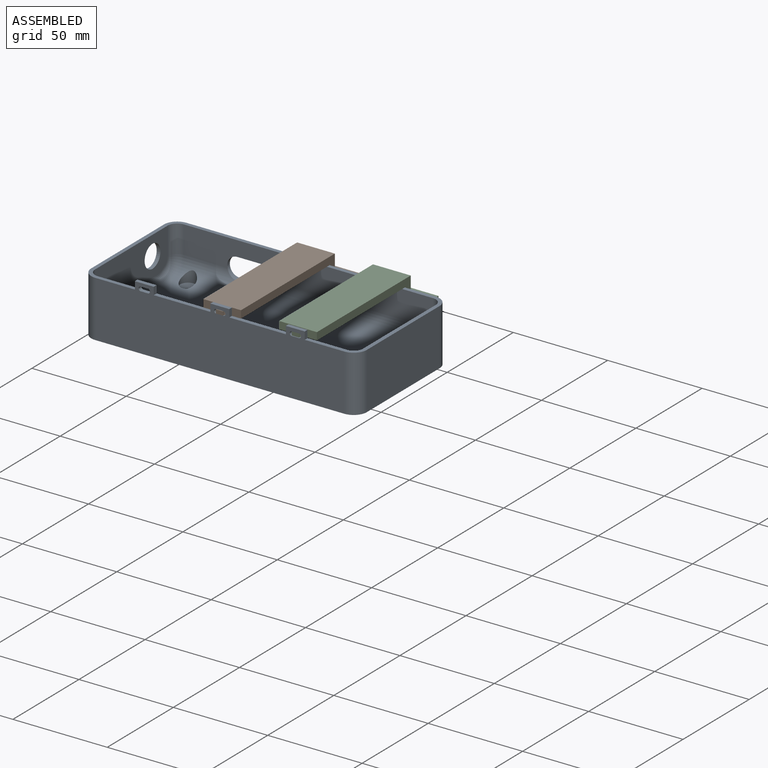
[diagram: assembled view]
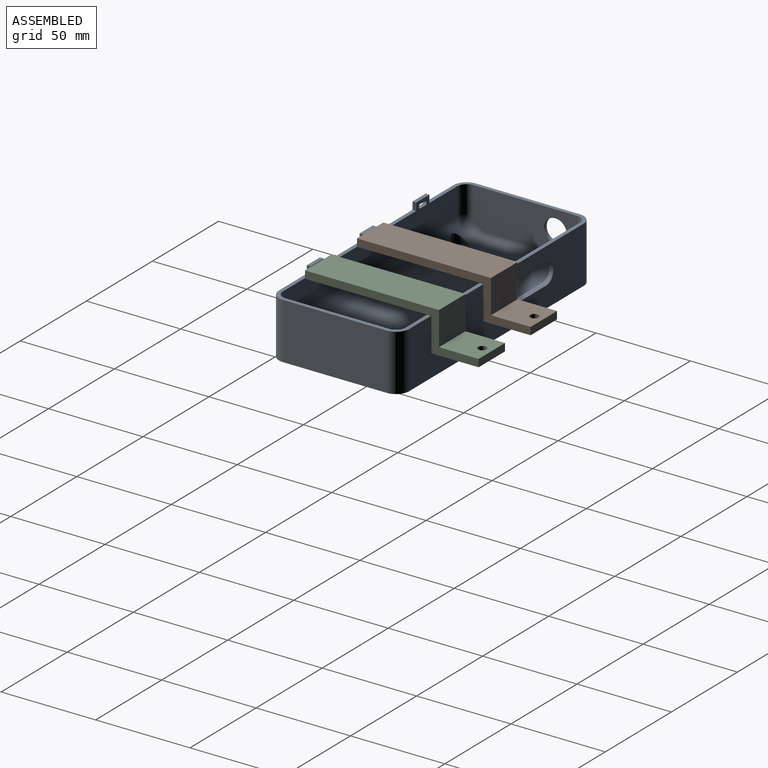
[diagram: assembled view, second angle]
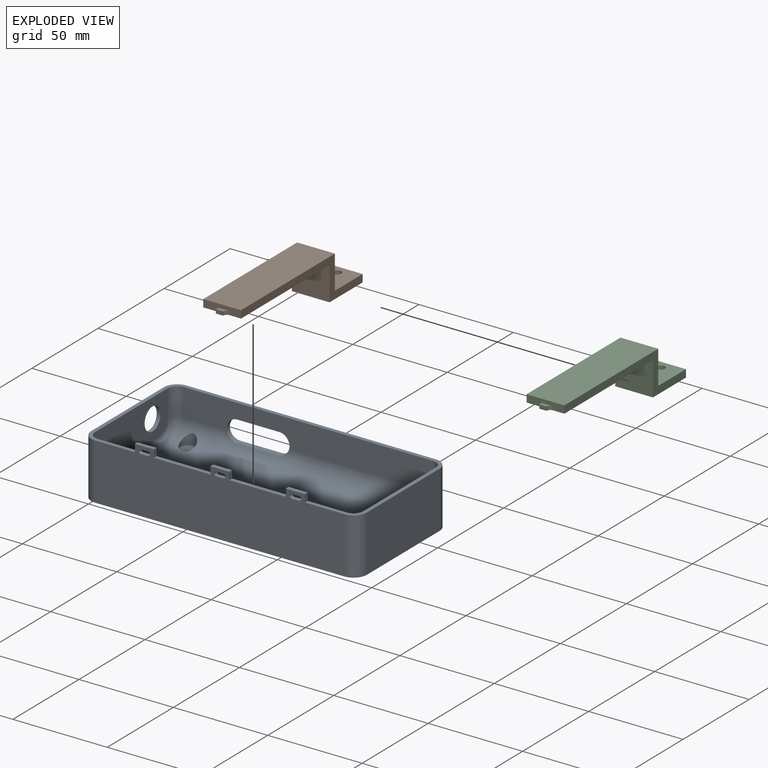
[diagram: exploded view]
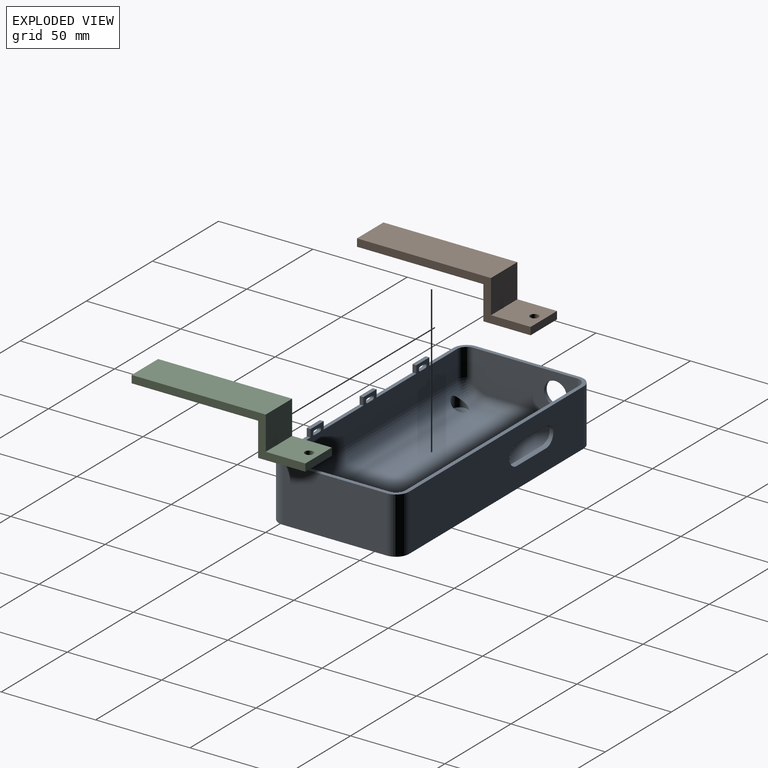
[diagram: exploded view, second angle]
ASSEMBLY  parts=3 mates=2
PART A: 83 faces, bbox 146.1x69.1x33.9 mm
  f0: plane 146x69mm, normal (0,0,1), area 643.4mm2, adj f18,f19,f20,f21,f22,f23,f24,f25
  f1: plane 30x2mm, normal (0,0,1), area 60mm2, adj f18,f22,f66,f68
  f2: plane 30x2mm, normal (0,0,1), area 60mm2, adj f18,f22,f63,f65
  f3: plane 113.65x2.43mm, normal (0,0.45,0.89), area 297mm2, adj f8,f9,f52,f53
  f4: plane 2.86x2.43mm, normal (0,0.45,0.89), area 6mm2, adj f8,f9,f29,f53
  f5: plane 113.65x2.43mm, normal (0,-0.45,0.89), area 297mm2, adj f7,f10,f50,f51
  f6: plane 2.86x2.43mm, normal (0,-0.45,0.89), area 6mm2, adj f7,f10,f42,f51
  f7: cylinder r=10mm len=132mm, axis (1,0,0), area 1265.7mm2, adj f5,f6,f17,f20,f34,f43,f50,f51
  f8: cylinder r=10mm len=132mm, axis (-1,0,0), area 1394.9mm2, adj f3,f4,f16,f18,f28,f37,f52,f53
  f9: cylinder r=10mm len=132mm, axis (-1,0,0), area 596.3mm2, adj f3,f4,f16,f26,f30,f39,f52,f53
  f10: cylinder r=10mm len=132mm, axis (-1,0,0), area 596.3mm2, adj f5,f6,f17,f26,f32,f41,f50,f51
  f11: cylinder r=2.25mm len=4.5mm, axis (0,0,1), area 28.3mm2, adj f15,f55
  f12: cylinder r=2.25mm len=4.5mm, axis (0,0,1), area 28.3mm2, adj f15,f57
  f13: cylinder r=2.25mm len=4.5mm, axis (0,0,1), area 28.3mm2, adj f15,f56
  f14: cylinder r=2.25mm len=4.5mm, axis (0,0,1), area 28.3mm2, adj f15,f54
  f15: plane 146x69mm, normal (0,0,-1), area 9968.3mm2, adj f11,f12,f13,f14,f21,f22,f23,f24
  f16: plane 2.86x2.43mm, normal (0,0.45,0.89), area 6mm2, adj f8,f9,f38,f52
  f17: plane 2.86x2.43mm, normal (0,-0.45,0.89), area 6mm2, adj f7,f10,f33,f50
  f18: plane 132x18.62mm, normal (0,1,0), area 2013.3mm2, adj f0,f1,f2,f8,f27,f36,f62,f63
  f19: plane 55x20.8mm, normal (1,0,0), area 1008.4mm2, adj f0,f27,f28,f29,f30,f31,f32,f33
  f20: plane 132x14.62mm, normal (0,-1,0), area 1724mm2, adj f0,f7,f35,f44,f58,f60,f61
  f21: plane 55x29.8mm, normal (-1,0,0), area 1525.9mm2, adj f0,f15,f45,f48,f49
  f22: plane 132x33.8mm, normal (0,-1,0), area 4017.1mm2, adj f0,f1,f2,f15,f45,f46,f62,f63
  f23: plane 55x29.8mm, normal (1,0,0), area 1639mm2, adj f0,f15,f46,f47
  f24: plane 132x29.8mm, normal (0,1,0), area 3602.2mm2, adj f0,f15,f47,f48,f58,f59,f60,f61
  f25: plane 55x20.8mm, normal (-1,0,0), area 1121.5mm2, adj f0,f36,f37,f38,f39,f40,f41,f42
  f26: plane 132x40.28mm, normal (0,0,1), area 5316.8mm2, adj f9,f10,f31,f40
  f27: cylinder r=5mm len=14.62mm, axis (0,0,-1), area 114.8mm2, adj f0,f18,f19,f28
  f28: torus R=5mm, axis (-1,0,0), area 71.2mm2, adj f8,f19,f27,f29
  f29: cylinder r=5mm len=5.65mm, axis (0,-0.89,0.45), area 20.7mm2, adj f4,f19,f28,f30
  f30: torus R=5mm, axis (-1,0,0), area 29.8mm2, adj f9,f19,f29,f31
  f31: cylinder r=5mm len=40.28mm, axis (0,-1,0), area 316.3mm2, adj f19,f26,f30,f32
  f32: torus R=5mm, axis (-1,0,0), area 29.8mm2, adj f10,f19,f31,f33
  f33: cylinder r=5mm len=5.65mm, axis (0,0.89,0.45), area 20.7mm2, adj f17,f19,f32,f34
  f34: torus R=5mm, axis (-1,0,0), area 71.2mm2, adj f7,f19,f33,f35
  f35: cylinder r=5mm len=14.62mm, axis (0,0,1), area 114.8mm2, adj f0,f19,f20,f34
  f36: cylinder r=5mm len=14.62mm, axis (0,0,1), area 114.8mm2, adj f0,f18,f25,f37
  f37: torus R=5mm, axis (-1,0,0), area 71.2mm2, adj f8,f25,f36,f38
  f38: cylinder r=5mm len=5.65mm, axis (0,-0.89,0.45), area 20.7mm2, adj f16,f25,f37,f39
  f39: torus R=5mm, axis (-1,0,0), area 29.8mm2, adj f9,f25,f38,f40
  f40: cylinder r=5mm len=40.28mm, axis (0,1,0), area 316.3mm2, adj f25,f26,f39,f41
  f41: torus R=5mm, axis (-1,0,0), area 29.8mm2, adj f10,f25,f40,f42
  f42: cylinder r=5mm len=5.65mm, axis (0,0.89,0.45), area 20.7mm2, adj f6,f25,f41,f43
  f43: torus R=5mm, axis (-1,0,0), area 71.2mm2, adj f7,f25,f42,f44
  f44: cylinder r=5mm len=14.62mm, axis (0,0,-1), area 114.8mm2, adj f0,f20,f25,f43
  f45: cylinder r=7mm len=29.8mm, axis (0,0,1), area 327.7mm2, adj f0,f15,f21,f22
  f46: cylinder r=7mm len=29.8mm, axis (0,0,-1), area 327.7mm2, adj f0,f15,f22,f23
  f47: cylinder r=7mm len=29.8mm, axis (0,0,1), area 327.7mm2, adj f0,f15,f23,f24
  f48: cylinder r=7mm len=29.8mm, axis (0,0,-1), area 327.7mm2, adj f0,f15,f21,f24
  f49: cylinder r=6mm len=12mm, axis (1,0,0), area 75.4mm2, adj f19,f21
  f50: cylinder r=4mm len=8mm, axis (0,0,-1), area 73.3mm2, adj f5,f7,f10,f17,f54
  f51: cylinder r=4mm len=8mm, axis (0,0,-1), area 73.3mm2, adj f5,f6,f7,f10,f56
  f52: cylinder r=4mm len=8mm, axis (0,0,-1), area 73.3mm2, adj f3,f8,f9,f16,f57
  f53: cylinder r=4mm len=8mm, axis (0,0,-1), area 73.3mm2, adj f3,f4,f8,f9,f55
  f54: cone r=2.25mm half-angle=45deg, axis (0,0,1), area 48.6mm2, adj f14,f50
  f55: cone r=4.25mm half-angle=45deg, axis (0,0,1), area 48.6mm2, adj f11,f53
  f56: cone r=4.25mm half-angle=45deg, axis (0,0,1), area 48.6mm2, adj f13,f51
  f57: cone r=2.25mm half-angle=45deg, axis (0,0,1), area 48.6mm2, adj f12,f52
  f58: plane 22.2x2mm, normal (0,0,-1), area 44.4mm2, adj f20,f24,f60,f61
  f59: plane 22.2x2.92mm, normal (0,0,1), area 64.7mm2, adj f7,f24,f60,f61
  f60: cylinder r=5.4mm len=10.8mm, axis (0,-1,0), area 37.3mm2, adj f7,f20,f24,f58,f59
  f61: cylinder r=5.4mm len=10.8mm, axis (0,1,0), area 37.3mm2, adj f7,f20,f24,f58,f59
  f62: plane 4x2mm, normal (1,0,0), area 8mm2, adj f0,f18,f22,f64
  f63: plane 4x2mm, normal (-1,0,0), area 8mm2, adj f2,f18,f22,f64
  f64: plane 10x2mm, normal (0,0,1), area 20mm2, adj f18,f22,f62,f63
  f65: plane 4x2mm, normal (1,0,0), area 8mm2, adj f2,f18,f22,f67
  f66: plane 4x2mm, normal (-1,0,0), area 8mm2, adj f1,f18,f22,f67
  f67: plane 10x2mm, normal (0,0,1), area 20mm2, adj f18,f22,f65,f66
  f68: plane 4x2mm, normal (1,0,0), area 8mm2, adj f1,f18,f22,f70
  f69: plane 4x2mm, normal (-1,0,0), area 8mm2, adj f0,f18,f22,f70
  f70: plane 10x2mm, normal (0,0,1), area 20mm2, adj f18,f22,f68,f69
  f71: plane 3.8x2mm, normal (0,0,1), area 7.6mm2, adj f18,f22,f81,f82
  f72: plane 3.8x2mm, normal (0,0,-1), area 7.6mm2, adj f18,f22,f81,f82
  f73: plane 3.8x2mm, normal (0,0,1), area 7.6mm2, adj f18,f22,f79,f80
  f74: plane 3.8x2mm, normal (0,0,-1), area 7.6mm2, adj f18,f22,f79,f80
  f75: plane 3.8x2mm, normal (0,0,-1), area 7.6mm2, adj f18,f22,f77,f78
  f76: plane 3.8x2mm, normal (0,0,1), area 7.6mm2, adj f18,f22,f77,f78
  f77: cylinder r=1.1mm len=2.2mm, axis (0,1,0), area 6.9mm2, adj f18,f22,f75,f76
  f78: cylinder r=1.1mm len=2.2mm, axis (0,-1,0), area 6.9mm2, adj f18,f22,f75,f76
  f79: cylinder r=1.1mm len=2.2mm, axis (0,1,0), area 6.9mm2, adj f18,f22,f73,f74
  f80: cylinder r=1.1mm len=2.2mm, axis (0,-1,0), area 6.9mm2, adj f18,f22,f73,f74
  f81: cylinder r=1.1mm len=2.2mm, axis (0,1,0), area 6.9mm2, adj f18,f22,f71,f72
  f82: cylinder r=1.1mm len=2.2mm, axis (0,-1,0), area 6.9mm2, adj f18,f22,f71,f72
PART B: 15 faces, bbox 20x94x21.8 mm
  f0: plane 20x4mm, normal (0,-1,0), area 68.4mm2, adj f1,f7,f8,f9,f10,f11,f13
  f1: plane 69x20mm, normal (0,0,-1), area 1348.5mm2, adj f0,f2,f8,f9,f11,f12,f13
  f2: plane 20x17.8mm, normal (0,-1,0), area 356mm2, adj f1,f3,f8,f9
  f3: plane 25x20mm, normal (0,0,-1), area 484.1mm2, adj f2,f4,f8,f9,f14
  f4: plane 20x4mm, normal (0,1,0), area 80mm2, adj f3,f5,f8,f9
  f5: plane 21x20mm, normal (0,0,1), area 404.1mm2, adj f4,f6,f8,f9,f14
  f6: plane 20x17.8mm, normal (0,1,0), area 356mm2, adj f5,f7,f8,f9
  f7: plane 71x20mm, normal (0,0,1), area 1420mm2, adj f0,f6,f8,f9
  f8: plane 92x21.8mm, normal (1,0,0), area 439.2mm2, adj f0,f1,f2,f3,f4,f5,f6,f7
  f9: plane 92x21.8mm, normal (-1,0,0), area 439.2mm2, adj f0,f1,f2,f3,f4,f5,f6,f7
  f10: plane 5.8x2mm, normal (0,0,1), area 8.5mm2, adj f0,f11,f12,f13
  f11: plane 2x2mm, normal (-1,0,0), area 4mm2, adj f0,f1,f10,f12
  f12: plane 3.8x2mm, normal (0,-1,0), area 7.6mm2, adj f1,f10,f11,f13
  f13: cylinder r=2mm len=2mm, axis (0,0,-1), area 6.3mm2, adj f0,f1,f10,f12
  f14: cylinder r=2.25mm len=4.5mm, axis (0,0,1), area 56.5mm2, adj f3,f5
PART C: same geometry as B
PLACE A at identity
PLACE B t=(60.84,0,25.8)mm
PLACE C t=(100.76,0.4,25.83)mm
MATE planar B.f1 <-> A.f0  axis (0,0,-1) through (70.84,33.28,25.8)mm
MATE planar B.f2 <-> A.f24  axis (0,-1,0) through (70.84,67,16.9)mm
